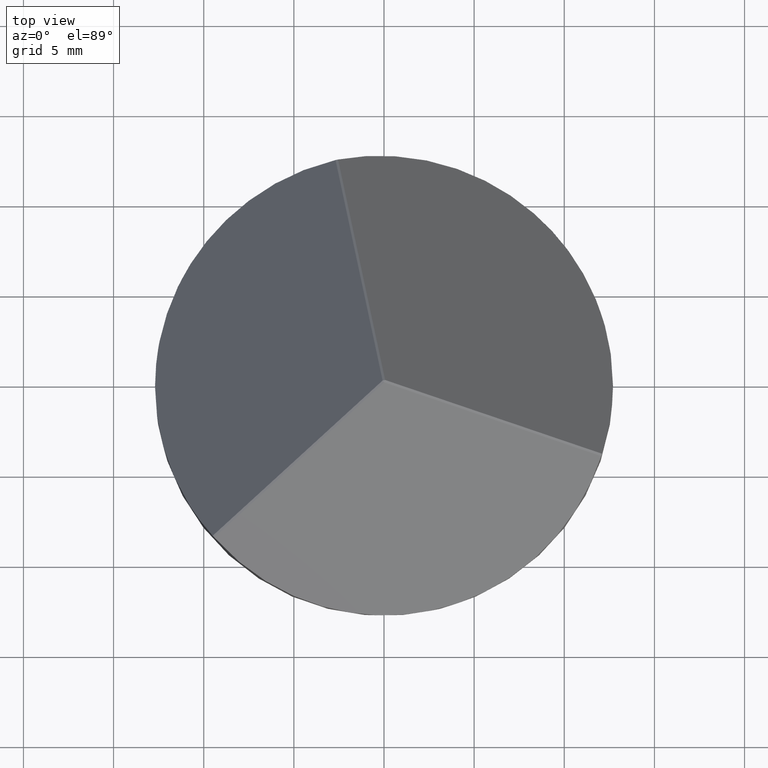
[diagram: clean part render]
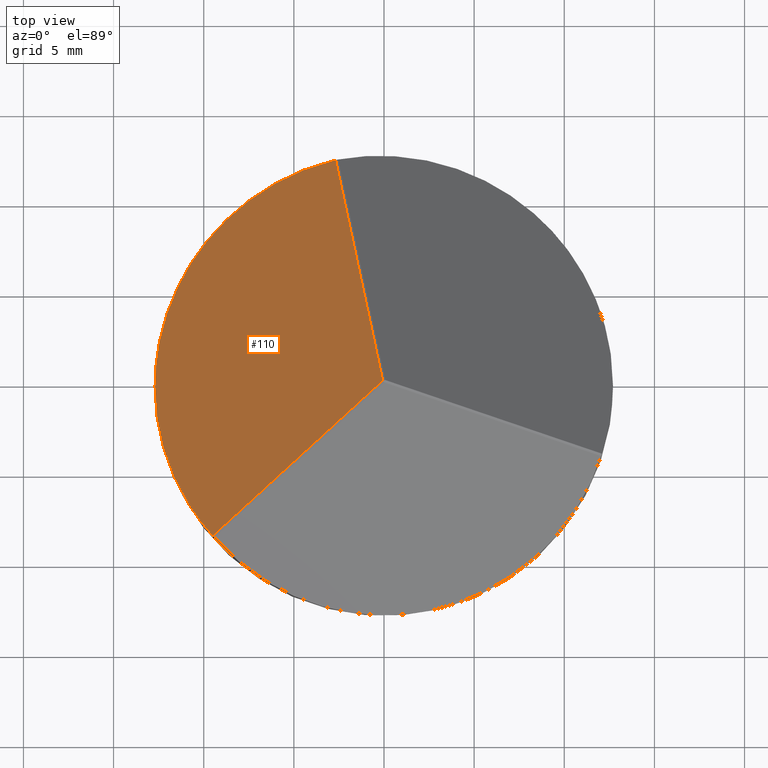
[diagram: same view with one face highlighted and labeled with its STEP entity id]
A machine part, top view. The second image highlights one B-rep face of the part: STEP entity #110.
In plain terms, the highlighted planar face has unit normal (-0.7761, 0.2537, 0.5774).
Its self-contained STEP definition (entity closure, byte-faithful):
#3 = EDGE_CURVE ( 'NONE', #173, #337, #166, .T. ) ;
#7 = DIRECTION ( 'NONE',  ( 0.6077332452617936198, 0.5452769656516175401, 0.5773502691896256200 ) ) ;
#30 = CARTESIAN_POINT ( 'NONE',  ( -2.687820388331773280, 12.41231733239478707, 9.913536654948602589 ) ) ;
#32 = CARTESIAN_POINT ( 'NONE',  ( -12.69999999999999929, 0.000000000000000000, 1.908562075568193128 ) ) ;
#56 = CARTESIAN_POINT ( 'NONE',  ( -12.69999999999999929, 0.000000000000000000, 1.908562075568193128 ) ) ;
#90 = CARTESIAN_POINT ( 'NONE',  ( -11.58490006638009717, -6.078626560760164388, 6.078314110506783940 ) ) ;
#109 = ORIENTED_EDGE ( 'NONE', *, *, #256, .T. ) ;
#110 = ADVANCED_FACE ( 'NONE', ( #365 ), #197, .T. ) ;
#124 = CARTESIAN_POINT ( 'NONE',  ( -0.07760903269836504081, 0.02536739462952854532, 18.86478606723122908 ) ) ;
#134 = EDGE_LOOP ( 'NONE', ( #313, #109, #311, #324 ) ) ;
#143 = CARTESIAN_POINT ( 'NONE',  ( -12.69999999999999929, 0.000000000000000000, 1.908562075568193128 ) ) ;
#148 =( BOUNDED_CURVE ( )  B_SPLINE_CURVE ( 3, ( #30, #287, #342, #32 ),
 .UNSPECIFIED., .F., .F. ) 
 B_SPLINE_CURVE_WITH_KNOTS ( ( 4, 4 ),
 ( 5.241555554680859430, 6.599099828102190202 ),
 .UNSPECIFIED. ) 
 CURVE ( )  GEOMETRIC_REPRESENTATION_ITEM ( )  RATIONAL_B_SPLINE_CURVE ( ( 1.000000000000000000, 0.8522294695164696066, 0.8522294695164696066, 1.000000000000000000 ) ) 
 REPRESENTATION_ITEM ( '' )  );
#149 = CARTESIAN_POINT ( 'NONE',  ( -12.69999999999999751, -3.141593610445596152, 3.288903423527215431 ) ) ;
#166 = LINE ( 'NONE', #327, #319 ) ;
#173 = VERTEX_POINT ( 'NONE', #124 ) ;
#189 =( BOUNDED_CURVE ( )  B_SPLINE_CURVE ( 3, ( #56, #149, #90, #206 ),
 .UNSPECIFIED., .F., .F. ) 
 B_SPLINE_CURVE_WITH_KNOTS ( ( 4, 4 ),
 ( 0.3159145209226036921, 1.041629752498725026 ),
 .UNSPECIFIED. ) 
 CURVE ( )  GEOMETRIC_REPRESENTATION_ITEM ( )  RATIONAL_B_SPLINE_CURVE ( ( 1.000000000000000000, 0.9565908929254083315, 0.9565908929254083315, 1.000000000000000000 ) ) 
 REPRESENTATION_ITEM ( '' )  );
#190 = CARTESIAN_POINT ( 'NONE',  ( -2.687820388331773280, 12.41231733239478707, 9.913536654948602589 ) ) ;
#196 = CARTESIAN_POINT ( 'NONE',  ( -8.504596467300229889, 2.779824039159992211, 6.326752040356383056 ) ) ;
#197 = PLANE ( 'NONE',  #306 ) ;
#203 = CARTESIAN_POINT ( 'NONE',  ( -9.499916676392437864, -8.428616917478272796, 9.913536654948565285 ) ) ;
#206 = CARTESIAN_POINT ( 'NONE',  ( -9.499916676392437864, -8.428616917478272796, 9.913536654948565285 ) ) ;
#218 = VECTOR ( 'NONE', #7, 1000.000000000000114 ) ;
#219 = EDGE_CURVE ( 'NONE', #254, #173, #232, .T. ) ;
#221 = DIRECTION ( 'NONE',  ( 0.5968741507396998491, 0.000000000000000000, 0.8023348728422328158 ) ) ;
#223 = EDGE_CURVE ( 'NONE', #337, #226, #148, .T. ) ;
#226 = VERTEX_POINT ( 'NONE', #143 ) ;
#232 = LINE ( 'NONE', #320, #218 ) ;
#254 = VERTEX_POINT ( 'NONE', #203 ) ;
#256 = EDGE_CURVE ( 'NONE', #226, #254, #189, .T. ) ;
#283 = DIRECTION ( 'NONE',  ( -0.7760903269836922913, 0.2536739462952635749, 0.5773502691896257311 ) ) ;
#287 = CARTESIAN_POINT ( 'NONE',  ( -8.783926544123202618, 11.09223841592949711, 2.298992025420364183 ) ) ;
#295 = DIRECTION ( 'NONE',  ( -0.1683570817218983662, 0.7989509119468810594, -0.5773502691896255090 ) ) ;
#306 = AXIS2_PLACEMENT_3D ( 'NONE', #196, #283, #221 ) ;
#311 = ORIENTED_EDGE ( 'NONE', *, *, #219, .T. ) ;
#313 = ORIENTED_EDGE ( 'NONE', *, *, #223, .T. ) ;
#319 = VECTOR ( 'NONE', #295, 1000.000000000000227 ) ;
#320 = CARTESIAN_POINT ( 'NONE',  ( -6.676532177785523992, -5.895389478842710140, 12.59576905379380918 ) ) ;
#324 = ORIENTED_EDGE ( 'NONE', *, *, #3, .T. ) ;
#327 = CARTESIAN_POINT ( 'NONE',  ( -1.905673322213067067, 8.700580912632229769, 12.59576905379381095 ) ) ;
#337 = VERTEX_POINT ( 'NONE', #190 ) ;
#342 = CARTESIAN_POINT ( 'NONE',  ( -12.69999999999999929, 6.237396781380374122, -0.8320013927107907659 ) ) ;
#365 = FACE_OUTER_BOUND ( 'NONE', #134, .T. ) ;